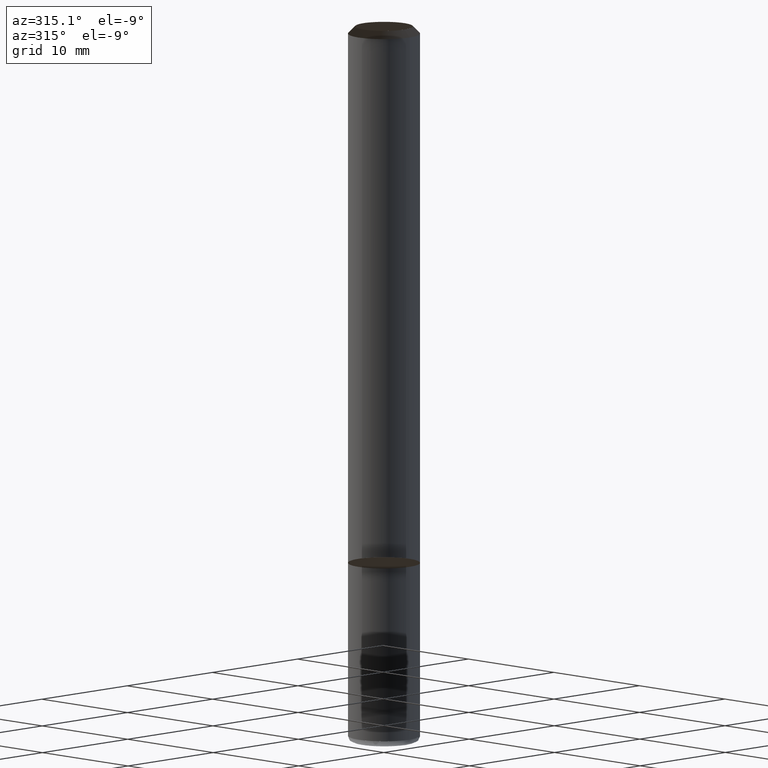
[diagram: clean part render]
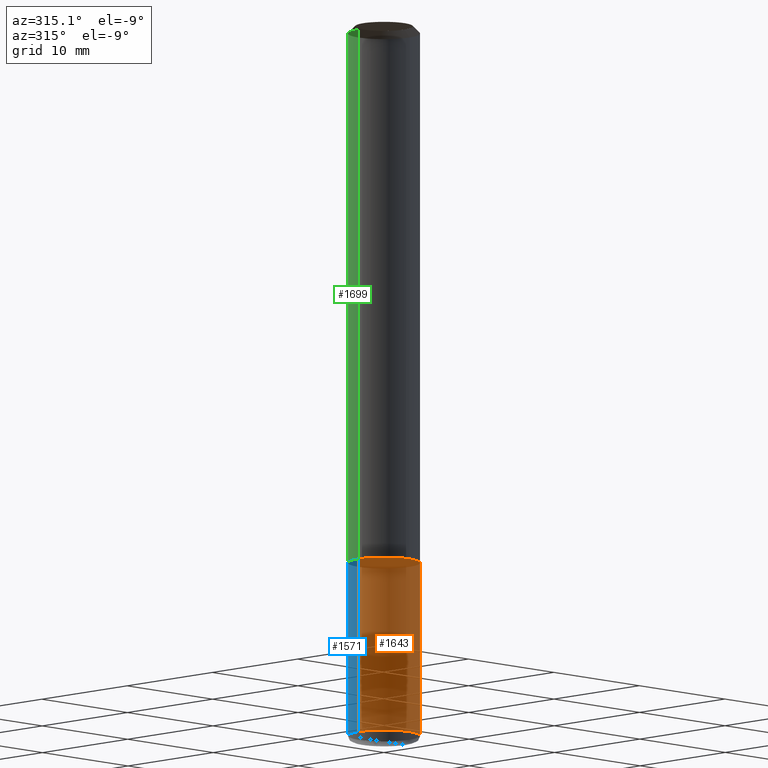
[diagram: same view with three faces highlighted in distinct colors, each labeled with its STEP entity id]
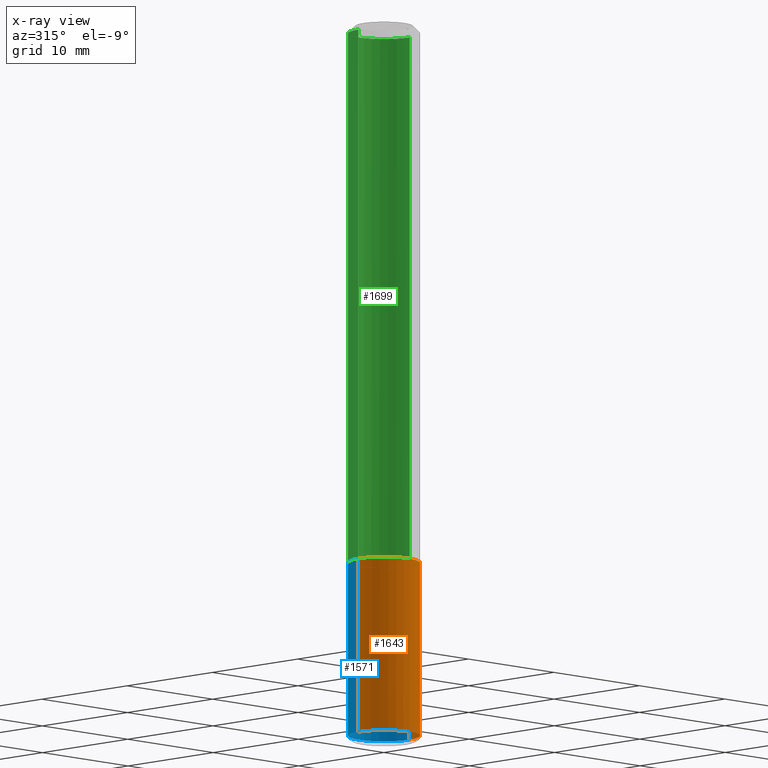
[diagram: x-ray of the same camera — body ghosted, the three highlighted faces saturated]
A machine part, auxiliary view with three faces highlighted in distinct colors.
The next image is the same camera in x-ray (body ghosted, the three faces saturated) — at least one of them is partly hidden behind the body in this view.
Their STEP definitions:

[orange] entity #1643 — the highlighted face is a freeform B-spline surface patch.
#1461=CARTESIAN_POINT('',(3.0,0.0,-14.5));
#1465=CARTESIAN_POINT('',(-3.0,0.0,-14.5));
#1466=CARTESIAN_POINT('',(3.0,0.0,0.0));
#1470=CARTESIAN_POINT('',(-3.0,0.0,0.0));
#1484=CARTESIAN_POINT('',(-3.0,-3.0,-14.5));
#1485=CARTESIAN_POINT('',(0.0,-3.0,-14.5));
#1486=CARTESIAN_POINT('',(3.0,-3.0,-14.5));
#1487=CARTESIAN_POINT('',(-3.0,-3.0,0.0));
#1488=CARTESIAN_POINT('',(0.0,-3.0,0.0));
#1489=CARTESIAN_POINT('',(3.0,-3.0,0.0));
#1624=(
BOUNDED_SURFACE()
B_SPLINE_SURFACE(1,2,(
(#1465,#1484,#1485,#1486,#1461),
(#1470,#1487,#1488,#1489,#1466)
), .UNSPECIFIED.,.F.,.F.,.F.)
B_SPLINE_SURFACE_WITH_KNOTS((2,2),(3,2,3),(
0.0,1.0),(
0.0,0.5,1.0), .UNSPECIFIED.)
GEOMETRIC_REPRESENTATION_ITEM()
RATIONAL_B_SPLINE_SURFACE(((1.0,0.707106781187,1.0,0.707106781187,1.0),
(1.0,0.707106781187,1.0,0.707106781187,1.0)
))
REPRESENTATION_ITEM('')
SURFACE()
);
#1625=(
BOUNDED_CURVE()
B_SPLINE_CURVE(1,(#1470,#1465),.UNSPECIFIED.,.F.,.F.)
B_SPLINE_CURVE_WITH_KNOTS((2,2),
(0.0,1.0),.UNSPECIFIED.)
CURVE()
GEOMETRIC_REPRESENTATION_ITEM()
RATIONAL_B_SPLINE_CURVE((1.0,1.0))
REPRESENTATION_ITEM('')
);
#1626=(
BOUNDED_CURVE()
B_SPLINE_CURVE(2,(#1465,#1484,#1485,#1486,#1461),.UNSPECIFIED.,.F.,.F.)
B_SPLINE_CURVE_WITH_KNOTS((3,2,3),
(0.0,0.5,1.0),.UNSPECIFIED.)
CURVE()
GEOMETRIC_REPRESENTATION_ITEM()
RATIONAL_B_SPLINE_CURVE((1.0,0.707106781187,1.0,0.707106781187,1.0))
REPRESENTATION_ITEM('')
);
#1627=(
BOUNDED_CURVE()
B_SPLINE_CURVE(1,(#1461,#1466),.UNSPECIFIED.,.F.,.F.)
B_SPLINE_CURVE_WITH_KNOTS((2,2),
(0.0,1.0),.UNSPECIFIED.)
CURVE()
GEOMETRIC_REPRESENTATION_ITEM()
RATIONAL_B_SPLINE_CURVE((1.0,1.0))
REPRESENTATION_ITEM('')
);
#1628=(
BOUNDED_CURVE()
B_SPLINE_CURVE(2,(#1466,#1489,#1488,#1487,#1470),.UNSPECIFIED.,.F.,.F.)
B_SPLINE_CURVE_WITH_KNOTS((3,2,3),
(0.0,0.5,1.0),.UNSPECIFIED.)
CURVE()
GEOMETRIC_REPRESENTATION_ITEM()
RATIONAL_B_SPLINE_CURVE((1.0,0.707106781187,1.0,0.707106781187,1.0))
REPRESENTATION_ITEM('')
);
#1629=VERTEX_POINT('',#1461);
#1630=VERTEX_POINT('',#1465);
#1631=VERTEX_POINT('',#1466);
#1632=VERTEX_POINT('',#1470);
#1633=EDGE_CURVE('',#1632,#1630,#1625,.T.);
#1634=EDGE_CURVE('',#1630,#1629,#1626,.T.);
#1635=EDGE_CURVE('',#1629,#1631,#1627,.T.);
#1636=EDGE_CURVE('',#1631,#1632,#1628,.T.);
#1637=ORIENTED_EDGE('',*,*,#1633,.T.);
#1638=ORIENTED_EDGE('',*,*,#1634,.T.);
#1639=ORIENTED_EDGE('',*,*,#1635,.T.);
#1640=ORIENTED_EDGE('',*,*,#1636,.T.);
#1641=EDGE_LOOP('',(#1637,#1638,#1639,#1640));
#1642=FACE_OUTER_BOUND('',#1641,.T.);
#1643=ADVANCED_FACE('',(#1642),#1624,.T.);

[blue] entity #1571 — the highlighted face is a freeform B-spline surface patch.
#1461=CARTESIAN_POINT('',(3.0,0.0,-14.5));
#1462=CARTESIAN_POINT('',(3.0,3.0,-14.5));
#1463=CARTESIAN_POINT('',(0.0,3.0,-14.5));
#1464=CARTESIAN_POINT('',(-3.0,3.0,-14.5));
#1465=CARTESIAN_POINT('',(-3.0,0.0,-14.5));
#1466=CARTESIAN_POINT('',(3.0,0.0,0.0));
#1467=CARTESIAN_POINT('',(3.0,3.0,0.0));
#1468=CARTESIAN_POINT('',(0.0,3.0,0.0));
#1469=CARTESIAN_POINT('',(-3.0,3.0,0.0));
#1470=CARTESIAN_POINT('',(-3.0,0.0,0.0));
#1552=(
BOUNDED_SURFACE()
B_SPLINE_SURFACE(1,2,(
(#1461,#1462,#1463,#1464,#1465),
(#1466,#1467,#1468,#1469,#1470)
), .UNSPECIFIED.,.F.,.F.,.F.)
B_SPLINE_SURFACE_WITH_KNOTS((2,2),(3,2,3),(
0.0,1.0),(
0.0,0.5,1.0), .UNSPECIFIED.)
GEOMETRIC_REPRESENTATION_ITEM()
RATIONAL_B_SPLINE_SURFACE(((1.0,0.707106781187,1.0,0.707106781187,1.0),
(1.0,0.707106781187,1.0,0.707106781187,1.0)
))
REPRESENTATION_ITEM('')
SURFACE()
);
#1553=(
BOUNDED_CURVE()
B_SPLINE_CURVE(2,(#1466,#1467,#1468,#1469,#1470),.UNSPECIFIED.,.F.,.F.)
B_SPLINE_CURVE_WITH_KNOTS((3,2,3),
(0.0,0.5,1.0),.UNSPECIFIED.)
CURVE()
GEOMETRIC_REPRESENTATION_ITEM()
RATIONAL_B_SPLINE_CURVE((1.0,0.707106781187,1.0,0.707106781187,1.0))
REPRESENTATION_ITEM('')
);
#1554=(
BOUNDED_CURVE()
B_SPLINE_CURVE(1,(#1470,#1465),.UNSPECIFIED.,.F.,.F.)
B_SPLINE_CURVE_WITH_KNOTS((2,2),
(0.0,1.0),.UNSPECIFIED.)
CURVE()
GEOMETRIC_REPRESENTATION_ITEM()
RATIONAL_B_SPLINE_CURVE((1.0,1.0))
REPRESENTATION_ITEM('')
);
#1555=(
BOUNDED_CURVE()
B_SPLINE_CURVE(2,(#1465,#1464,#1463,#1462,#1461),.UNSPECIFIED.,.F.,.F.)
B_SPLINE_CURVE_WITH_KNOTS((3,2,3),
(0.0,0.5,1.0),.UNSPECIFIED.)
CURVE()
GEOMETRIC_REPRESENTATION_ITEM()
RATIONAL_B_SPLINE_CURVE((1.0,0.707106781187,1.0,0.707106781187,1.0))
REPRESENTATION_ITEM('')
);
#1556=(
BOUNDED_CURVE()
B_SPLINE_CURVE(1,(#1461,#1466),.UNSPECIFIED.,.F.,.F.)
B_SPLINE_CURVE_WITH_KNOTS((2,2),
(0.0,1.0),.UNSPECIFIED.)
CURVE()
GEOMETRIC_REPRESENTATION_ITEM()
RATIONAL_B_SPLINE_CURVE((1.0,1.0))
REPRESENTATION_ITEM('')
);
#1557=VERTEX_POINT('',#1461);
#1558=VERTEX_POINT('',#1465);
#1559=VERTEX_POINT('',#1466);
#1560=VERTEX_POINT('',#1470);
#1561=EDGE_CURVE('',#1559,#1560,#1553,.T.);
#1562=EDGE_CURVE('',#1560,#1558,#1554,.T.);
#1563=EDGE_CURVE('',#1558,#1557,#1555,.T.);
#1564=EDGE_CURVE('',#1557,#1559,#1556,.T.);
#1565=ORIENTED_EDGE('',*,*,#1561,.T.);
#1566=ORIENTED_EDGE('',*,*,#1562,.T.);
#1567=ORIENTED_EDGE('',*,*,#1563,.T.);
#1568=ORIENTED_EDGE('',*,*,#1564,.T.);
#1569=EDGE_LOOP('',(#1565,#1566,#1567,#1568));
#1570=FACE_OUTER_BOUND('',#1569,.T.);
#1571=ADVANCED_FACE('',(#1570),#1552,.T.);

[green] entity #1699 — the highlighted face is a freeform B-spline surface patch.
#1466=CARTESIAN_POINT('',(3.0,0.0,0.0));
#1467=CARTESIAN_POINT('',(3.0,3.0,0.0));
#1468=CARTESIAN_POINT('',(0.0,3.0,0.0));
#1469=CARTESIAN_POINT('',(-3.0,3.0,0.0));
#1470=CARTESIAN_POINT('',(-3.0,0.0,0.0));
#1490=CARTESIAN_POINT('',(3.0,0.0,44.4));
#1491=CARTESIAN_POINT('',(3.0,3.0,44.4));
#1492=CARTESIAN_POINT('',(0.0,3.0,44.4));
#1493=CARTESIAN_POINT('',(-3.0,3.0,44.4));
#1494=CARTESIAN_POINT('',(-3.0,0.0,44.4));
#1680=(
BOUNDED_SURFACE()
B_SPLINE_SURFACE(1,2,(
(#1466,#1467,#1468,#1469,#1470),
(#1490,#1491,#1492,#1493,#1494)
), .UNSPECIFIED.,.F.,.F.,.F.)
B_SPLINE_SURFACE_WITH_KNOTS((2,2),(3,2,3),(
0.0,1.0),(
0.0,0.5,1.0), .UNSPECIFIED.)
GEOMETRIC_REPRESENTATION_ITEM()
RATIONAL_B_SPLINE_SURFACE(((1.0,0.707106781187,1.0,0.707106781187,1.0),
(1.0,0.707106781187,1.0,0.707106781187,1.0)
))
REPRESENTATION_ITEM('')
SURFACE()
);
#1681=(
BOUNDED_CURVE()
B_SPLINE_CURVE(2,(#1490,#1491,#1492,#1493,#1494),.UNSPECIFIED.,.F.,.F.)
B_SPLINE_CURVE_WITH_KNOTS((3,2,3),
(0.0,0.5,1.0),.UNSPECIFIED.)
CURVE()
GEOMETRIC_REPRESENTATION_ITEM()
RATIONAL_B_SPLINE_CURVE((1.0,0.707106781187,1.0,0.707106781187,1.0))
REPRESENTATION_ITEM('')
);
#1682=(
BOUNDED_CURVE()
B_SPLINE_CURVE(1,(#1494,#1470),.UNSPECIFIED.,.F.,.F.)
B_SPLINE_CURVE_WITH_KNOTS((2,2),
(0.0,1.0),.UNSPECIFIED.)
CURVE()
GEOMETRIC_REPRESENTATION_ITEM()
RATIONAL_B_SPLINE_CURVE((1.0,1.0))
REPRESENTATION_ITEM('')
);
#1683=(
BOUNDED_CURVE()
B_SPLINE_CURVE(2,(#1470,#1469,#1468,#1467,#1466),.UNSPECIFIED.,.F.,.F.)
B_SPLINE_CURVE_WITH_KNOTS((3,2,3),
(0.0,0.5,1.0),.UNSPECIFIED.)
CURVE()
GEOMETRIC_REPRESENTATION_ITEM()
RATIONAL_B_SPLINE_CURVE((1.0,0.707106781187,1.0,0.707106781187,1.0))
REPRESENTATION_ITEM('')
);
#1684=(
BOUNDED_CURVE()
B_SPLINE_CURVE(1,(#1466,#1490),.UNSPECIFIED.,.F.,.F.)
B_SPLINE_CURVE_WITH_KNOTS((2,2),
(0.0,1.0),.UNSPECIFIED.)
CURVE()
GEOMETRIC_REPRESENTATION_ITEM()
RATIONAL_B_SPLINE_CURVE((1.0,1.0))
REPRESENTATION_ITEM('')
);
#1685=VERTEX_POINT('',#1466);
#1686=VERTEX_POINT('',#1470);
#1687=VERTEX_POINT('',#1490);
#1688=VERTEX_POINT('',#1494);
#1689=EDGE_CURVE('',#1687,#1688,#1681,.T.);
#1690=EDGE_CURVE('',#1688,#1686,#1682,.T.);
#1691=EDGE_CURVE('',#1686,#1685,#1683,.T.);
#1692=EDGE_CURVE('',#1685,#1687,#1684,.T.);
#1693=ORIENTED_EDGE('',*,*,#1689,.T.);
#1694=ORIENTED_EDGE('',*,*,#1690,.T.);
#1695=ORIENTED_EDGE('',*,*,#1691,.T.);
#1696=ORIENTED_EDGE('',*,*,#1692,.T.);
#1697=EDGE_LOOP('',(#1693,#1694,#1695,#1696));
#1698=FACE_OUTER_BOUND('',#1697,.T.);
#1699=ADVANCED_FACE('',(#1698),#1680,.T.);